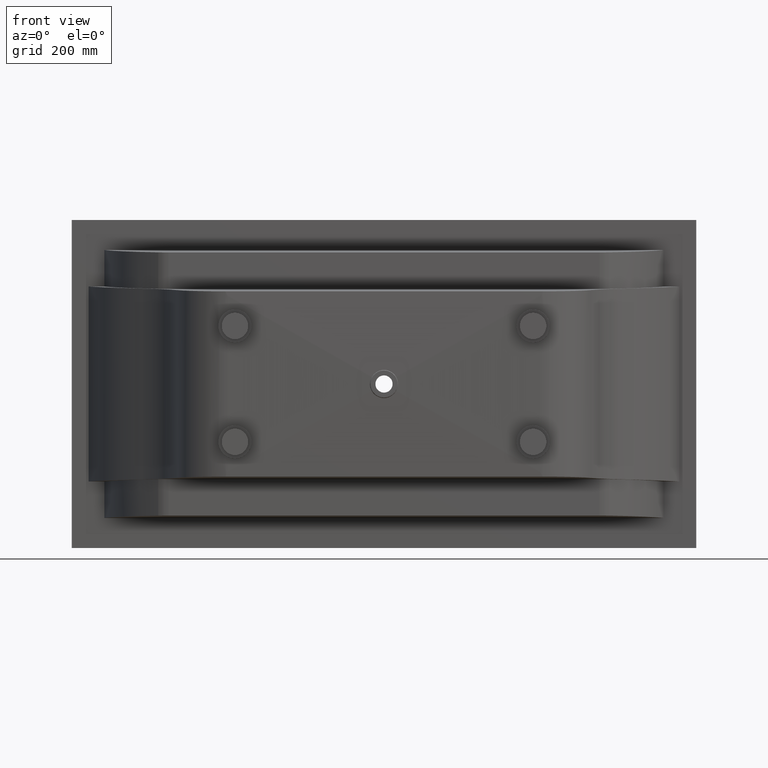
[diagram: clean part render]
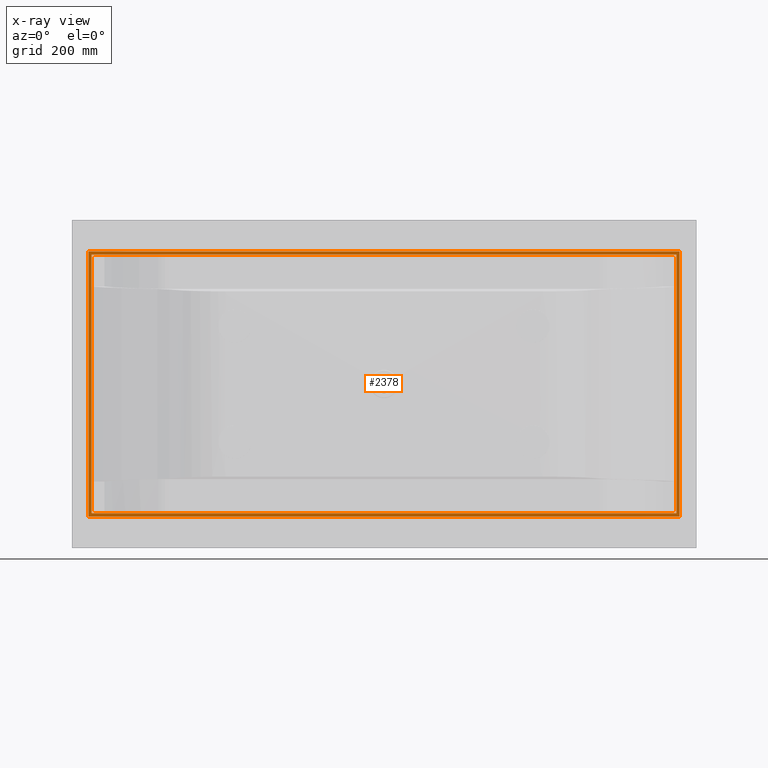
[diagram: x-ray — body ghosted, one internal face saturated and labeled with its STEP entity id]
A machine part, front view, then the same camera in x-ray: the body is ghosted and one INTERNAL B-rep face — a face not visible from any outside direction — is saturated and labeled: STEP entity #2378.
In plain terms, the highlighted planar face has unit normal (-0, 1, 0).
Its self-contained STEP definition (entity closure, byte-faithful):
#25 = VERTEX_POINT ( 'NONE', #1595 ) ;
#98 = LINE ( 'NONE', #4323, #381 ) ;
#164 = ORIENTED_EDGE ( 'NONE', *, *, #3242, .F. ) ;
#197 = EDGE_CURVE ( 'NONE', #2598, #5111, #98, .T. ) ;
#204 = EDGE_CURVE ( 'NONE', #5111, #25, #3658, .T. ) ;
#339 = AXIS2_PLACEMENT_3D ( 'NONE', #1674, #425, #3839 ) ;
#381 = VECTOR ( 'NONE', #3458, 1000.000000000000000 ) ;
#425 = DIRECTION ( 'NONE',  ( -0.0000000000000000000, 1.000000000000000000, 0.0000000000000000000 ) ) ;
#510 = DIRECTION ( 'NONE',  ( 0.0000000000000000000, 0.0000000000000000000, -1.000000000000000000 ) ) ;
#722 = DIRECTION ( 'NONE',  ( -0.0000000000000000000, -0.0000000000000000000, 1.000000000000000000 ) ) ;
#936 = DIRECTION ( 'NONE',  ( 1.000000000000000000, 0.0000000000000000000, 0.0000000000000000000 ) ) ;
#938 = EDGE_CURVE ( 'NONE', #3815, #3869, #4064, .T. ) ;
#945 = ORIENTED_EDGE ( 'NONE', *, *, #1347, .F. ) ;
#1054 = CARTESIAN_POINT ( 'NONE',  ( 49.99999999999998600, 5.000000000000004400, -95.00000000000063900 ) ) ;
#1060 = VECTOR ( 'NONE', #510, 1000.000000000000000 ) ;
#1258 = CARTESIAN_POINT ( 'NONE',  ( 60.00000000000000000, 5.000000000000004400, -105.0000000000006500 ) ) ;
#1347 = EDGE_CURVE ( 'NONE', #4102, #2598, #1351, .T. ) ;
#1351 = LINE ( 'NONE', #4827, #5026 ) ;
#1595 = CARTESIAN_POINT ( 'NONE',  ( 49.99999999999998600, 5.000000000000004400, -95.00000000000063900 ) ) ;
#1674 = CARTESIAN_POINT ( 'NONE',  ( 942.5000000000023900, 5.000000000000004400, -495.0000000000000000 ) ) ;
#1715 = ORIENTED_EDGE ( 'NONE', *, *, #4051, .T. ) ;
#1818 = DIRECTION ( 'NONE',  ( -0.0000000000000000000, -0.0000000000000000000, 1.000000000000000000 ) ) ;
#1829 = FACE_BOUND ( 'NONE', #4352, .T. ) ;
#2048 = VERTEX_POINT ( 'NONE', #5310 ) ;
#2079 = CARTESIAN_POINT ( 'NONE',  ( 60.00000000000000000, 5.000000000000004400, -885.0000000000000000 ) ) ;
#2378 = ADVANCED_FACE ( 'NONE', ( #1829, #3901 ), #2552, .F. ) ;
#2405 = CARTESIAN_POINT ( 'NONE',  ( 1835.000000000002500, 5.000000000000004400, -95.00000000000063900 ) ) ;
#2409 = EDGE_CURVE ( 'NONE', #3869, #2828, #2720, .T. ) ;
#2453 = ORIENTED_EDGE ( 'NONE', *, *, #3844, .T. ) ;
#2552 = PLANE ( 'NONE',  #339 ) ;
#2598 = VERTEX_POINT ( 'NONE', #3671 ) ;
#2720 = LINE ( 'NONE', #1258, #4933 ) ;
#2828 = VERTEX_POINT ( 'NONE', #5079 ) ;
#3068 = LINE ( 'NONE', #4235, #5426 ) ;
#3242 = EDGE_CURVE ( 'NONE', #25, #4102, #3068, .T. ) ;
#3378 = EDGE_LOOP ( 'NONE', ( #164, #3851, #3799, #945 ) ) ;
#3458 = DIRECTION ( 'NONE',  ( -1.000000000000000000, -0.0000000000000000000, -0.0000000000000000000 ) ) ;
#3654 = VECTOR ( 'NONE', #3864, 1000.000000000000000 ) ;
#3658 = LINE ( 'NONE', #1054, #5725 ) ;
#3671 = CARTESIAN_POINT ( 'NONE',  ( 1835.000000000002300, 5.000000000000004400, -895.0000000000000000 ) ) ;
#3740 = DIRECTION ( 'NONE',  ( 1.000000000000000000, 0.0000000000000000000, 0.0000000000000000000 ) ) ;
#3794 = ORIENTED_EDGE ( 'NONE', *, *, #938, .T. ) ;
#3799 = ORIENTED_EDGE ( 'NONE', *, *, #197, .F. ) ;
#3815 = VERTEX_POINT ( 'NONE', #5191 ) ;
#3839 = DIRECTION ( 'NONE',  ( 0.0000000000000000000, -0.0000000000000000000, 1.000000000000000000 ) ) ;
#3844 = EDGE_CURVE ( 'NONE', #2828, #2048, #5150, .T. ) ;
#3851 = ORIENTED_EDGE ( 'NONE', *, *, #204, .F. ) ;
#3864 = DIRECTION ( 'NONE',  ( -1.000000000000000000, -0.0000000000000000000, -0.0000000000000000000 ) ) ;
#3869 = VERTEX_POINT ( 'NONE', #2079 ) ;
#3899 = CARTESIAN_POINT ( 'NONE',  ( 49.99999999999998600, 5.000000000000004400, -895.0000000000000000 ) ) ;
#3901 = FACE_OUTER_BOUND ( 'NONE', #3378, .T. ) ;
#4051 = EDGE_CURVE ( 'NONE', #2048, #3815, #5633, .T. ) ;
#4064 = LINE ( 'NONE', #5227, #3654 ) ;
#4102 = VERTEX_POINT ( 'NONE', #2405 ) ;
#4186 = CARTESIAN_POINT ( 'NONE',  ( 60.00000000000000000, 5.000000000000004400, -105.0000000000006500 ) ) ;
#4235 = CARTESIAN_POINT ( 'NONE',  ( 49.99999999999998600, 5.000000000000004400, -95.00000000000063900 ) ) ;
#4286 = ORIENTED_EDGE ( 'NONE', *, *, #2409, .T. ) ;
#4323 = CARTESIAN_POINT ( 'NONE',  ( 49.99999999999998600, 5.000000000000004400, -895.0000000000000000 ) ) ;
#4352 = EDGE_LOOP ( 'NONE', ( #2453, #1715, #3794, #4286 ) ) ;
#4827 = CARTESIAN_POINT ( 'NONE',  ( 1835.000000000002500, 5.000000000000004400, -95.00000000000063900 ) ) ;
#4933 = VECTOR ( 'NONE', #722, 1000.000000000000000 ) ;
#5026 = VECTOR ( 'NONE', #5281, 1000.000000000000000 ) ;
#5079 = CARTESIAN_POINT ( 'NONE',  ( 60.00000000000000000, 5.000000000000004400, -105.0000000000006500 ) ) ;
#5111 = VERTEX_POINT ( 'NONE', #3899 ) ;
#5150 = LINE ( 'NONE', #4186, #5292 ) ;
#5191 = CARTESIAN_POINT ( 'NONE',  ( 1825.000000000002300, 5.000000000000004400, -885.0000000000000000 ) ) ;
#5227 = CARTESIAN_POINT ( 'NONE',  ( 60.00000000000000000, 5.000000000000004400, -885.0000000000000000 ) ) ;
#5281 = DIRECTION ( 'NONE',  ( -1.387778780781446900E-016, 0.0000000000000000000, -1.000000000000000000 ) ) ;
#5292 = VECTOR ( 'NONE', #936, 1000.000000000000000 ) ;
#5310 = CARTESIAN_POINT ( 'NONE',  ( 1825.000000000002300, 5.000000000000004400, -105.0000000000006500 ) ) ;
#5399 = CARTESIAN_POINT ( 'NONE',  ( 1825.000000000002300, 5.000000000000004400, -105.0000000000006500 ) ) ;
#5426 = VECTOR ( 'NONE', #3740, 1000.000000000000000 ) ;
#5633 = LINE ( 'NONE', #5399, #1060 ) ;
#5725 = VECTOR ( 'NONE', #1818, 1000.000000000000000 ) ;